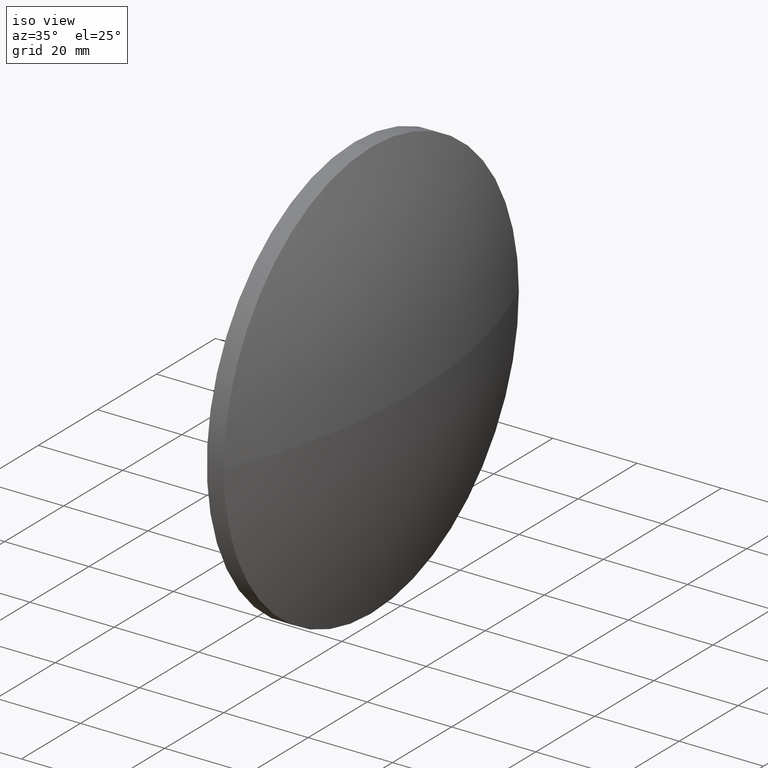
[diagram: clean part render]
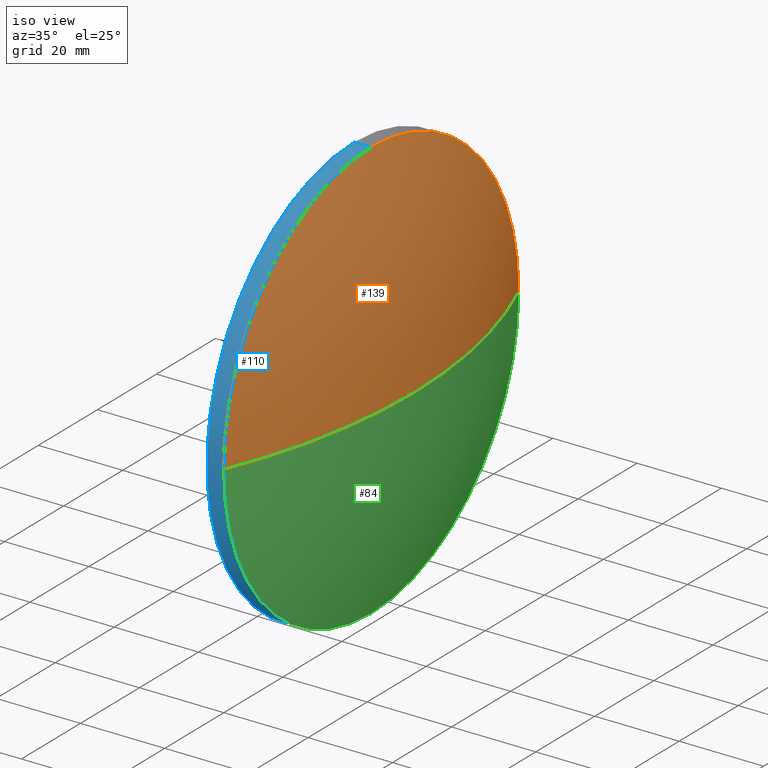
[diagram: same view with three faces highlighted in distinct colors, each labeled with its STEP entity id]
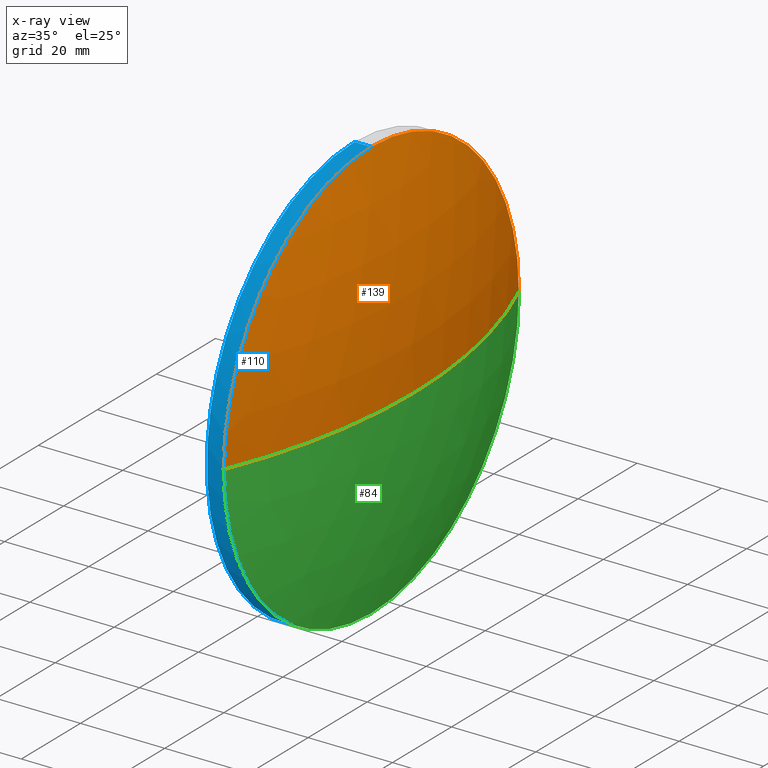
[diagram: x-ray of the same camera — body ghosted, the three highlighted faces saturated]
A machine part, iso view with three faces highlighted in distinct colors.
The next image is the same camera in x-ray (body ghosted, the three faces saturated) — at least one of them is partly hidden behind the body in this view.
Their STEP definitions:

[orange] entity #139 — the highlighted spherical surface has radius 129.403 mm.
#5 = VERTEX_POINT ( 'NONE', #129 ) ;
#8 = ORIENTED_EDGE ( 'NONE', *, *, #146, .T. ) ;
#11 = CARTESIAN_POINT ( 'NONE',  ( 239.9389074292314500, 180.0418907599244800, 6.123233995736760600E-015 ) ) ;
#15 = AXIS2_PLACEMENT_3D ( 'NONE', #169, #130, #86 ) ;
#25 = AXIS2_PLACEMENT_3D ( 'NONE', #48, #149, #164 ) ;
#33 = ORIENTED_EDGE ( 'NONE', *, *, #55, .F. ) ;
#34 = DIRECTION ( 'NONE',  ( 0.0000000000000000000, -1.000000000000000000, -1.224646799147353200E-016 ) ) ;
#35 = EDGE_CURVE ( 'NONE', #101, #73, #136, .T. ) ;
#45 = EDGE_CURVE ( 'NONE', #125, #101, #104, .T. ) ;
#48 = CARTESIAN_POINT ( 'NONE',  ( 120.5857979764951300, 130.0418907599245700, 0.0000000000000000000 ) ) ;
#51 = DIRECTION ( 'NONE',  ( 0.0000000000000000000, -1.000000000000000000, 0.0000000000000000000 ) ) ;
#52 = CARTESIAN_POINT ( 'NONE',  ( 120.5857979764951300, 130.0418907599245700, 0.0000000000000000000 ) ) ;
#55 = EDGE_CURVE ( 'NONE', #5, #125, #177, .T. ) ;
#58 = DIRECTION ( 'NONE',  ( 0.0000000000000000000, 0.0000000000000000000, 1.000000000000000000 ) ) ;
#60 = FACE_OUTER_BOUND ( 'NONE', #69, .T. ) ;
#63 = CARTESIAN_POINT ( 'NONE',  ( 120.5857979764951300, 130.0418907599245700, 0.0000000000000000000 ) ) ;
#67 = AXIS2_PLACEMENT_3D ( 'NONE', #182, #99, #58 ) ;
#69 = EDGE_LOOP ( 'NONE', ( #33, #8, #80, #186 ) ) ;
#73 = VERTEX_POINT ( 'NONE', #11 ) ;
#79 = DIRECTION ( 'NONE',  ( 0.0000000000000000000, -1.224646799147353200E-016, 1.000000000000000000 ) ) ;
#80 = ORIENTED_EDGE ( 'NONE', *, *, #35, .F. ) ;
#86 = DIRECTION ( 'NONE',  ( 0.0000000000000000000, 0.0000000000000000000, 1.000000000000000000 ) ) ;
#99 = DIRECTION ( 'NONE',  ( -1.000000000000000000, -0.0000000000000000000, -0.0000000000000000000 ) ) ;
#101 = VERTEX_POINT ( 'NONE', #121 ) ;
#102 = SPHERICAL_SURFACE ( 'NONE', #105, 129.4031094527363200 ) ;
#104 = CIRCLE ( 'NONE', #67, 50.00000000000001400 ) ;
#105 = AXIS2_PLACEMENT_3D ( 'NONE', #63, #150, #51 ) ;
#121 = CARTESIAN_POINT ( 'NONE',  ( 239.9389074292314500, 130.0418907599245100, 50.00000000000001400 ) ) ;
#125 = VERTEX_POINT ( 'NONE', #180 ) ;
#129 = CARTESIAN_POINT ( 'NONE',  ( 249.9889074292314300, 130.0418907599245700, 0.0000000000000000000 ) ) ;
#130 = DIRECTION ( 'NONE',  ( -1.000000000000000000, -0.0000000000000000000, -0.0000000000000000000 ) ) ;
#136 = CIRCLE ( 'NONE', #15, 50.00000000000001400 ) ;
#139 = ADVANCED_FACE ( 'NONE', ( #60 ), #102, .T. ) ;
#146 = EDGE_CURVE ( 'NONE', #5, #73, #175, .T. ) ;
#149 = DIRECTION ( 'NONE',  ( 0.0000000000000000000, 0.0000000000000000000, -1.000000000000000000 ) ) ;
#150 = DIRECTION ( 'NONE',  ( 0.0000000000000000000, 0.0000000000000000000, 1.000000000000000000 ) ) ;
#164 = DIRECTION ( 'NONE',  ( -1.000000000000000000, 0.0000000000000000000, 0.0000000000000000000 ) ) ;
#169 = CARTESIAN_POINT ( 'NONE',  ( 239.9389074292314500, 130.0418907599245100, 0.0000000000000000000 ) ) ;
#175 = CIRCLE ( 'NONE', #181, 129.4031094527363200 ) ;
#177 = CIRCLE ( 'NONE', #25, 129.4031094527363200 ) ;
#180 = CARTESIAN_POINT ( 'NONE',  ( 239.9389074292314500, 80.04189075992455600, 0.0000000000000000000 ) ) ;
#181 = AXIS2_PLACEMENT_3D ( 'NONE', #52, #79, #34 ) ;
#182 = CARTESIAN_POINT ( 'NONE',  ( 239.9389074292314500, 130.0418907599245100, 0.0000000000000000000 ) ) ;
#186 = ORIENTED_EDGE ( 'NONE', *, *, #45, .F. ) ;

[blue] entity #110 — the highlighted cylindrical surface (partial cylindrical patch) has radius 50 mm, axis along (-1, -0, -0).
#2 = CYLINDRICAL_SURFACE ( 'NONE', #167, 50.00000000000001400 ) ;
#4 = VERTEX_POINT ( 'NONE', #12 ) ;
#10 = CIRCLE ( 'NONE', #36, 50.00000000000001400 ) ;
#12 = CARTESIAN_POINT ( 'NONE',  ( 239.9389074292314500, 130.0418907599245100, -50.00000000000001400 ) ) ;
#14 = EDGE_CURVE ( 'NONE', #101, #59, #132, .T. ) ;
#16 = CARTESIAN_POINT ( 'NONE',  ( 217.3311486608872700, 130.0418907599245100, -50.00000000000001400 ) ) ;
#32 = CARTESIAN_POINT ( 'NONE',  ( 217.3311486608872700, 130.0418907599245100, 0.0000000000000000000 ) ) ;
#36 = AXIS2_PLACEMENT_3D ( 'NONE', #94, #107, #65 ) ;
#38 = ORIENTED_EDGE ( 'NONE', *, *, #166, .F. ) ;
#41 = CARTESIAN_POINT ( 'NONE',  ( 217.3311486608872700, 130.0418907599245100, 50.00000000000001400 ) ) ;
#45 = EDGE_CURVE ( 'NONE', #125, #101, #104, .T. ) ;
#46 = ORIENTED_EDGE ( 'NONE', *, *, #14, .T. ) ;
#49 = LINE ( 'NONE', #16, #64 ) ;
#58 = DIRECTION ( 'NONE',  ( 0.0000000000000000000, 0.0000000000000000000, 1.000000000000000000 ) ) ;
#59 = VERTEX_POINT ( 'NONE', #100 ) ;
#64 = VECTOR ( 'NONE', #174, 1000.000000000000000 ) ;
#65 = DIRECTION ( 'NONE',  ( 0.0000000000000000000, 0.0000000000000000000, 1.000000000000000000 ) ) ;
#67 = AXIS2_PLACEMENT_3D ( 'NONE', #182, #99, #58 ) ;
#78 = DIRECTION ( 'NONE',  ( -1.000000000000000000, -0.0000000000000000000, -0.0000000000000000000 ) ) ;
#82 = VECTOR ( 'NONE', #184, 1000.000000000000000 ) ;
#83 = ORIENTED_EDGE ( 'NONE', *, *, #45, .T. ) ;
#94 = CARTESIAN_POINT ( 'NONE',  ( 235.9389074292314500, 130.0418907599245100, 0.0000000000000000000 ) ) ;
#99 = DIRECTION ( 'NONE',  ( -1.000000000000000000, -0.0000000000000000000, -0.0000000000000000000 ) ) ;
#100 = CARTESIAN_POINT ( 'NONE',  ( 235.9389074292314500, 130.0418907599245100, 50.00000000000001400 ) ) ;
#101 = VERTEX_POINT ( 'NONE', #121 ) ;
#104 = CIRCLE ( 'NONE', #67, 50.00000000000001400 ) ;
#107 = DIRECTION ( 'NONE',  ( -1.000000000000000000, -0.0000000000000000000, -0.0000000000000000000 ) ) ;
#110 = ADVANCED_FACE ( 'NONE', ( #151 ), #2, .T. ) ;
#119 = ORIENTED_EDGE ( 'NONE', *, *, #135, .T. ) ;
#120 = CARTESIAN_POINT ( 'NONE',  ( 239.9389074292314500, 130.0418907599245100, 0.0000000000000000000 ) ) ;
#121 = CARTESIAN_POINT ( 'NONE',  ( 239.9389074292314500, 130.0418907599245100, 50.00000000000001400 ) ) ;
#124 = DIRECTION ( 'NONE',  ( -1.000000000000000000, -0.0000000000000000000, -0.0000000000000000000 ) ) ;
#125 = VERTEX_POINT ( 'NONE', #180 ) ;
#132 = LINE ( 'NONE', #41, #82 ) ;
#133 = CARTESIAN_POINT ( 'NONE',  ( 235.9389074292314500, 130.0418907599245100, -50.00000000000001400 ) ) ;
#135 = EDGE_CURVE ( 'NONE', #4, #125, #161, .T. ) ;
#145 = VERTEX_POINT ( 'NONE', #133 ) ;
#151 = FACE_OUTER_BOUND ( 'NONE', #185, .T. ) ;
#152 = DIRECTION ( 'NONE',  ( 0.0000000000000000000, 0.0000000000000000000, 1.000000000000000000 ) ) ;
#161 = CIRCLE ( 'NONE', #173, 50.00000000000001400 ) ;
#163 = DIRECTION ( 'NONE',  ( 0.0000000000000000000, 0.0000000000000000000, 1.000000000000000000 ) ) ;
#166 = EDGE_CURVE ( 'NONE', #4, #145, #49, .T. ) ;
#167 = AXIS2_PLACEMENT_3D ( 'NONE', #32, #124, #163 ) ;
#171 = EDGE_CURVE ( 'NONE', #145, #59, #10, .T. ) ;
#173 = AXIS2_PLACEMENT_3D ( 'NONE', #120, #78, #152 ) ;
#174 = DIRECTION ( 'NONE',  ( -1.000000000000000000, -0.0000000000000000000, -0.0000000000000000000 ) ) ;
#178 = ORIENTED_EDGE ( 'NONE', *, *, #171, .F. ) ;
#180 = CARTESIAN_POINT ( 'NONE',  ( 239.9389074292314500, 80.04189075992455600, 0.0000000000000000000 ) ) ;
#182 = CARTESIAN_POINT ( 'NONE',  ( 239.9389074292314500, 130.0418907599245100, 0.0000000000000000000 ) ) ;
#184 = DIRECTION ( 'NONE',  ( -1.000000000000000000, -0.0000000000000000000, -0.0000000000000000000 ) ) ;
#185 = EDGE_LOOP ( 'NONE', ( #38, #119, #83, #46, #178 ) ) ;

[green] entity #84 — the highlighted spherical surface has radius 129.403 mm.
#4 = VERTEX_POINT ( 'NONE', #12 ) ;
#5 = VERTEX_POINT ( 'NONE', #129 ) ;
#11 = CARTESIAN_POINT ( 'NONE',  ( 239.9389074292314500, 180.0418907599244800, 6.123233995736760600E-015 ) ) ;
#12 = CARTESIAN_POINT ( 'NONE',  ( 239.9389074292314500, 130.0418907599245100, -50.00000000000001400 ) ) ;
#22 = SPHERICAL_SURFACE ( 'NONE', #157, 129.4031094527363200 ) ;
#24 = EDGE_CURVE ( 'NONE', #73, #4, #140, .T. ) ;
#25 = AXIS2_PLACEMENT_3D ( 'NONE', #48, #149, #164 ) ;
#28 = CARTESIAN_POINT ( 'NONE',  ( 239.9389074292314500, 130.0418907599245100, 0.0000000000000000000 ) ) ;
#34 = DIRECTION ( 'NONE',  ( 0.0000000000000000000, -1.000000000000000000, -1.224646799147353200E-016 ) ) ;
#48 = CARTESIAN_POINT ( 'NONE',  ( 120.5857979764951300, 130.0418907599245700, 0.0000000000000000000 ) ) ;
#52 = CARTESIAN_POINT ( 'NONE',  ( 120.5857979764951300, 130.0418907599245700, 0.0000000000000000000 ) ) ;
#55 = EDGE_CURVE ( 'NONE', #5, #125, #177, .T. ) ;
#66 = FACE_OUTER_BOUND ( 'NONE', #158, .T. ) ;
#71 = CARTESIAN_POINT ( 'NONE',  ( 120.5857979764951300, 130.0418907599245700, 0.0000000000000000000 ) ) ;
#73 = VERTEX_POINT ( 'NONE', #11 ) ;
#78 = DIRECTION ( 'NONE',  ( -1.000000000000000000, -0.0000000000000000000, -0.0000000000000000000 ) ) ;
#79 = DIRECTION ( 'NONE',  ( 0.0000000000000000000, -1.224646799147353200E-016, 1.000000000000000000 ) ) ;
#84 = ADVANCED_FACE ( 'NONE', ( #66 ), #22, .T. ) ;
#93 = DIRECTION ( 'NONE',  ( 0.0000000000000000000, -1.000000000000000000, 0.0000000000000000000 ) ) ;
#95 = DIRECTION ( 'NONE',  ( 0.0000000000000000000, 0.0000000000000000000, 1.000000000000000000 ) ) ;
#98 = AXIS2_PLACEMENT_3D ( 'NONE', #28, #141, #143 ) ;
#112 = ORIENTED_EDGE ( 'NONE', *, *, #146, .F. ) ;
#117 = ORIENTED_EDGE ( 'NONE', *, *, #135, .F. ) ;
#120 = CARTESIAN_POINT ( 'NONE',  ( 239.9389074292314500, 130.0418907599245100, 0.0000000000000000000 ) ) ;
#125 = VERTEX_POINT ( 'NONE', #180 ) ;
#129 = CARTESIAN_POINT ( 'NONE',  ( 249.9889074292314300, 130.0418907599245700, 0.0000000000000000000 ) ) ;
#135 = EDGE_CURVE ( 'NONE', #4, #125, #161, .T. ) ;
#140 = CIRCLE ( 'NONE', #98, 50.00000000000001400 ) ;
#141 = DIRECTION ( 'NONE',  ( -1.000000000000000000, -0.0000000000000000000, -0.0000000000000000000 ) ) ;
#143 = DIRECTION ( 'NONE',  ( 0.0000000000000000000, 0.0000000000000000000, 1.000000000000000000 ) ) ;
#146 = EDGE_CURVE ( 'NONE', #5, #73, #175, .T. ) ;
#149 = DIRECTION ( 'NONE',  ( 0.0000000000000000000, 0.0000000000000000000, -1.000000000000000000 ) ) ;
#152 = DIRECTION ( 'NONE',  ( 0.0000000000000000000, 0.0000000000000000000, 1.000000000000000000 ) ) ;
#154 = ORIENTED_EDGE ( 'NONE', *, *, #24, .F. ) ;
#157 = AXIS2_PLACEMENT_3D ( 'NONE', #71, #95, #93 ) ;
#158 = EDGE_LOOP ( 'NONE', ( #112, #168, #117, #154 ) ) ;
#161 = CIRCLE ( 'NONE', #173, 50.00000000000001400 ) ;
#164 = DIRECTION ( 'NONE',  ( -1.000000000000000000, 0.0000000000000000000, 0.0000000000000000000 ) ) ;
#168 = ORIENTED_EDGE ( 'NONE', *, *, #55, .T. ) ;
#173 = AXIS2_PLACEMENT_3D ( 'NONE', #120, #78, #152 ) ;
#175 = CIRCLE ( 'NONE', #181, 129.4031094527363200 ) ;
#177 = CIRCLE ( 'NONE', #25, 129.4031094527363200 ) ;
#180 = CARTESIAN_POINT ( 'NONE',  ( 239.9389074292314500, 80.04189075992455600, 0.0000000000000000000 ) ) ;
#181 = AXIS2_PLACEMENT_3D ( 'NONE', #52, #79, #34 ) ;